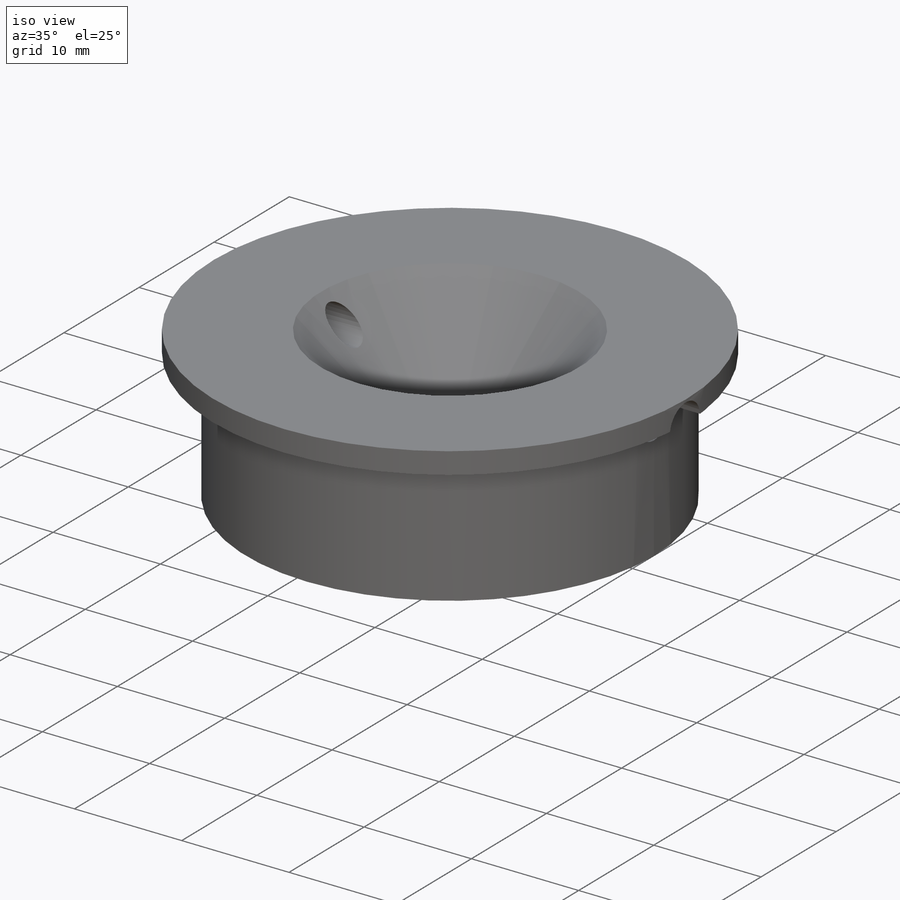
[diagram: iso view]
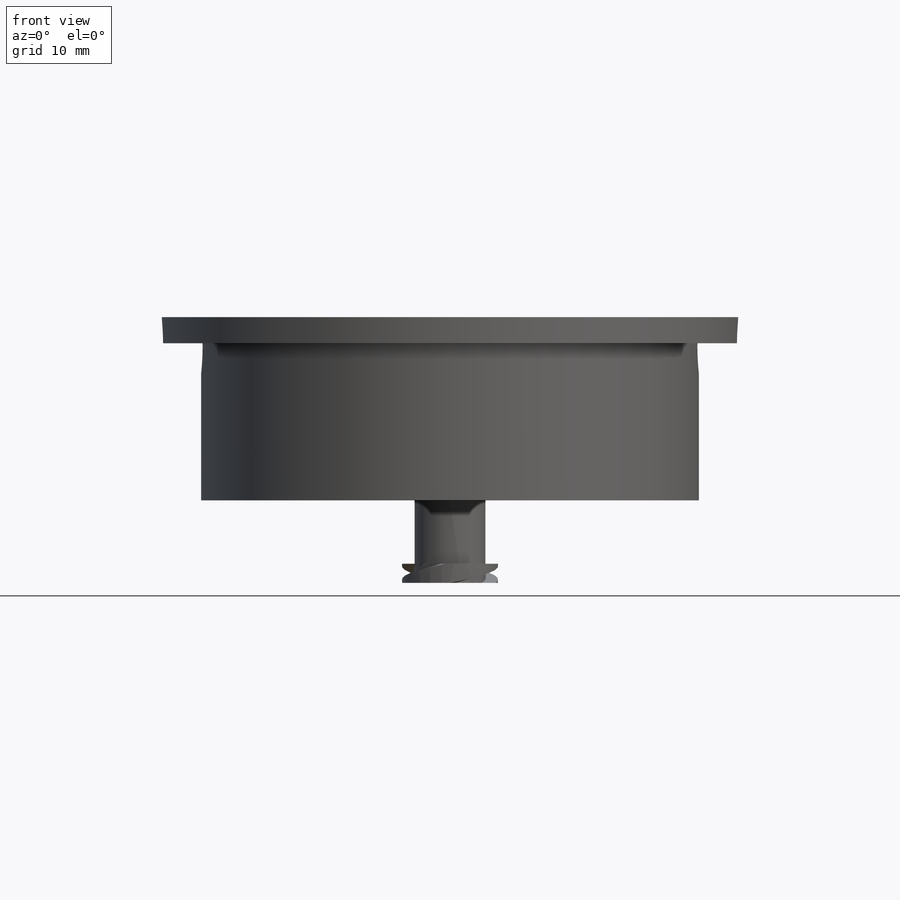
[diagram: front view]
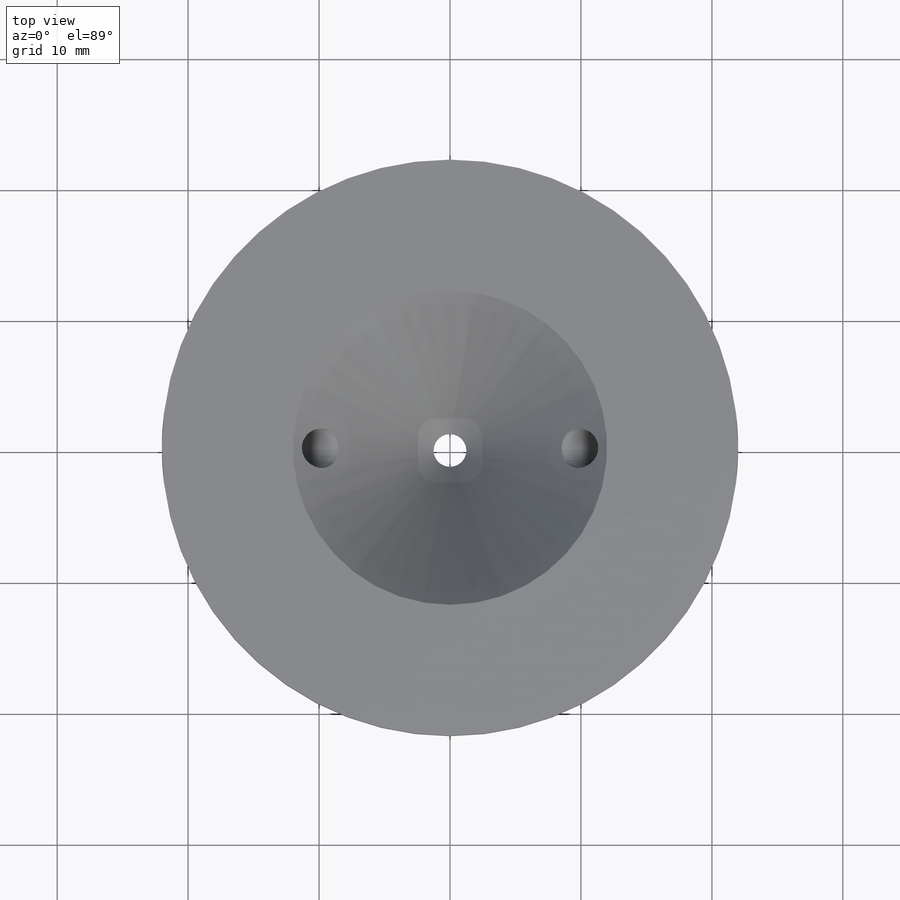
[diagram: top view]
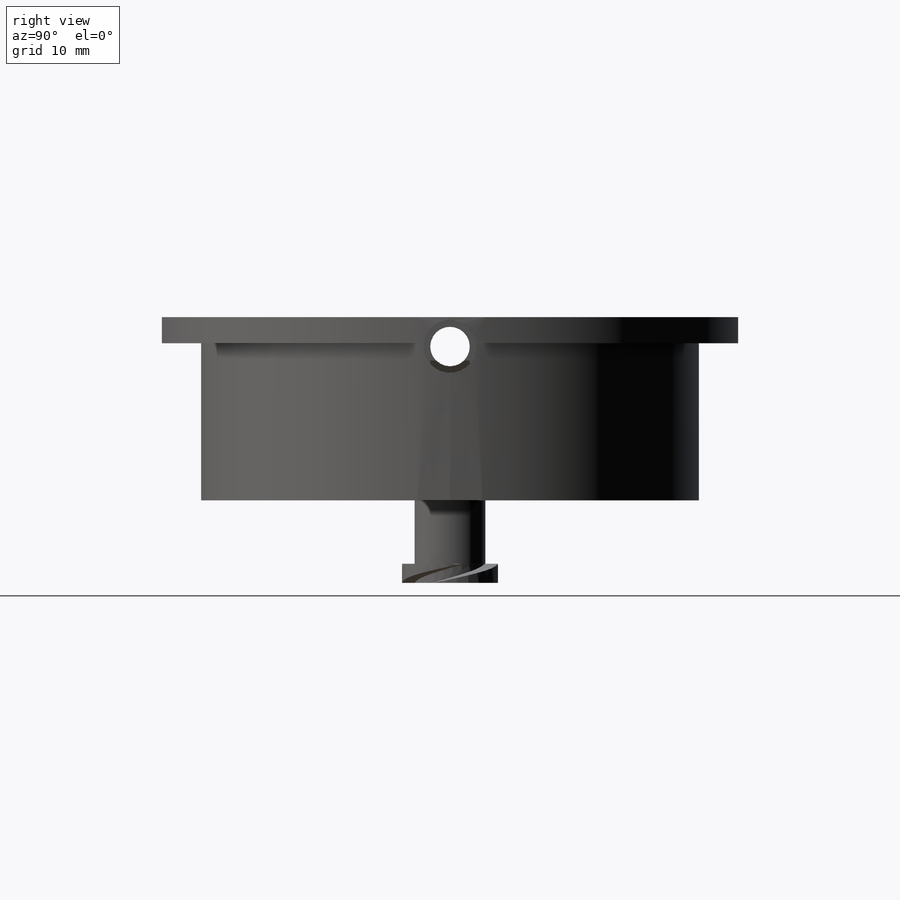
[diagram: right view]
SOLIDWORKS PART (.sldprt)
format: sldprt  version: not decoded by parser v0  size: 390,144 bytes
history: native  units: mm
features: sketch x16, cut_extrude x6, extrude x2, fillet x2, material x1, revolve x1, helix x1, sweep x1, cut_revolve x1 (+11 scaffold rows collapsed)
feature tree (42):
  scaffold x11  (default folders/planes/origin — collapsed)
  material  "Material <not specified>"
  sketch  "Sketch1"  dims[D1=12.0mm]
  revolve  "Revolve1"  Angle=360deg
  sketch  "Sketch2"
  sketch  "3DSketch2"  dims[c1.D1=~1.760244mm c2.D1=12.0mm c3.D1=11.0mm c4.D1=10.0mm c5.D1=11.0mm c6.D1=11.5mm c7.D1=11.75mm]
  cut_extrude  "Cut-Extrude1"  [1 undecoded]
  sketch  "3DSketch3"  dims[c1.D1=~2.07281mm c2.D1=11.5mm c3.D1=11.75mm]
  cut_extrude  "Cut-Extrude2"  Depth=3mm
  sketch  "3DSketch4"  dims[c1.D1=~2.054286mm c2.D1=11.5mm c3.D1=11.75mm]
  cut_extrude  "Cut-Extrude3"  Depth=3mm
  sketch  "Sketch3"  dims[D1=5.5mm]
  sketch  "3DSketch5"  dims[D1=11.75mm]
  cut_extrude  "Cut-Extrude5"  [1 undecoded]
  sketch  "Sketch5"  dims[D1=2.5mm]
  cut_extrude  "Cut-Extrude7"  [1 undecoded]
  sketch  "3DSketch6"  dims[c1.D1=4.0mm c2.D1=4.0mm c3.D1=12.0mm c4.D1=10.0mm c5.D1=12.0mm c6.D1=13.0mm c7.D1=1.0mm c8.D1=13.0mm c9.D1=4.0mm c10.D1=13.0mm c11.D1=4.0mm c12.D1=12.0mm c13.D1=14.0mm c14.D1=4.0mm c15.D1=3.0mm c16.D1=3.0mm c17.D1=5.0mm c18.D1=5.0mm]
  sketch  "Sketch6"  dims[D1=~2.967991mm]
  extrude  "Boss-Extrude1"  Depth=6.3mm
  sketch  "Sketch8"  dims[D1=0.97mm]
  extrude  "Boss-Extrude2"  Depth=1.46mm
  sketch  "Sketch9"
  helix  "Helix/Spiral2"  Pitch=5.08mm
  sketch  "3DSketch8"  dims[c1.D1=1.245mm c2.D1=0.56mm c3.D1=0.73mm c4.D1=0.73mm c5.D1=1.245mm c6.D1=1.245mm c7.D1=0.556mm c8.D1=0.56mm c9.D1=1.0mm c10.D1=0.75mm c11.D1=0.75mm c12.D1=1.0mm c13.D1=0.75mm c14.D1=1.0mm c15.D1=0.8mm c16.D1=0.8mm c17.D1=0.75mm c18.D1=0.75mm c19.D1=0.65mm c20.D1=0.75mm c21.D1=0.65mm c22.D1=0.75mm c23.D1=0.9mm c24.D1=0.9mm c25.D1=0.8mm c26.D1=0.9mm c27.D1=0.8mm c28.D1=0.9mm c29.D1=0.8mm c30.D1=0.8mm c31.D1=0.93mm c32.D1=0.93mm c33.D1=0.9mm c34.D1=0.9mm c35.D1=0.8mm c36.D1=0.8mm c37.D1=0.7mm c38.D1=0.7mm c39.D1=0.8mm c40.D1=0.8mm c41.D1=0.7mm c42.D1=0.7mm c43.D1=0.5mm c44.D1=0.5mm c45.D1=0.7mm c46.D1=0.7mm c47.D1=1.0mm c48.D1=1.0mm c49.D1=0.7mm c50.D1=1.0mm c51.D1=0.7mm c52.D1=1.0mm c53.D1=0.75mm c54.D1=1.0mm c55.D1=0.75mm c56.D1=1.0mm]
  sweep  "Cut-Sweep5"
  sketch  "Sketch10"  dims[D1=~1.251434mm]
  cut_extrude  "Cut-Extrude8"  [1 undecoded]
  sketch  "Sketch13"
  sketch  "3DSketch11"  dims[c1.D1=8.0mm c2.D1=1.84mm c3.D1=2.085mm c4.D1=2.15mm]
  cut_revolve  "Cut-Revolve6"  Angle=360deg
  fillet  "Fillet1"  Radius=0.25mm
  fillet  "Fillet2"  Radius=0.5mm
decode coverage: 22 of 30 modeling features carry decoded parameters
note: ~ marks probable driven/reference dimensions
note: 4 parameter values undecoded
summary: no parameter record found for 4 features
note: suppression state not decoded; provenance and decode notes live in map.json
